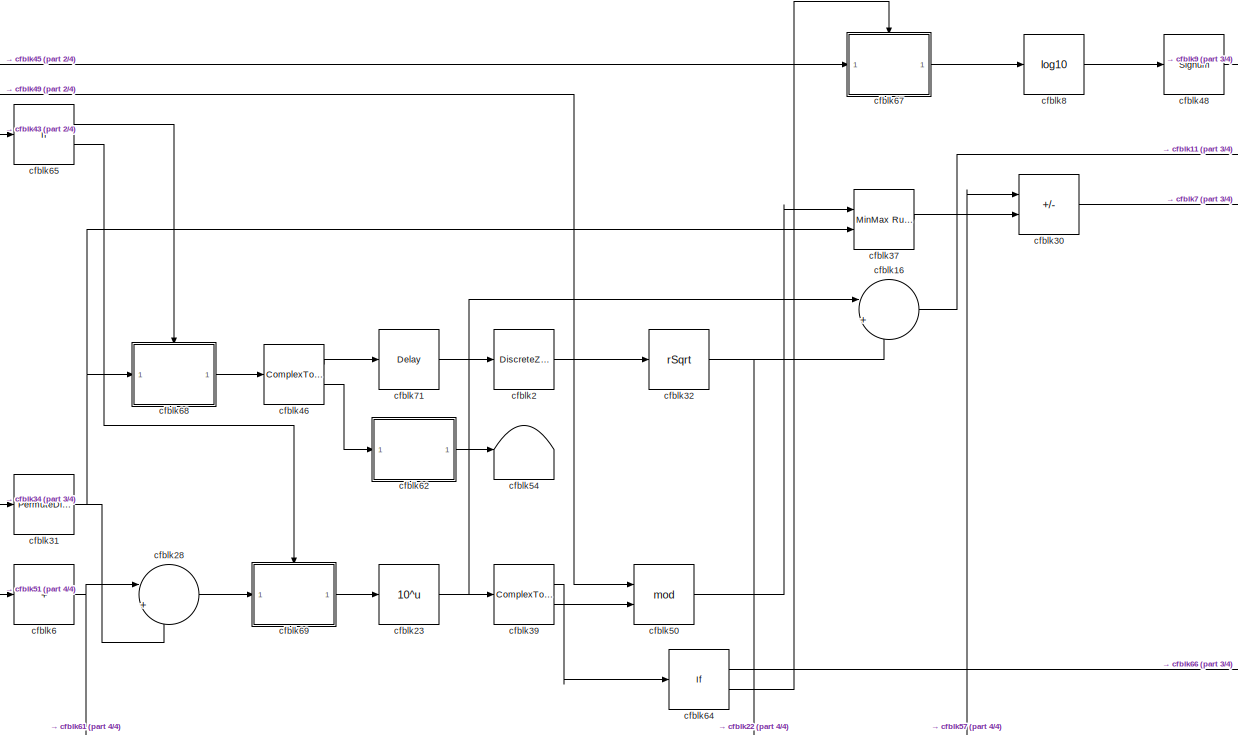
[diagram: root canvas - part 1/4, top center region]
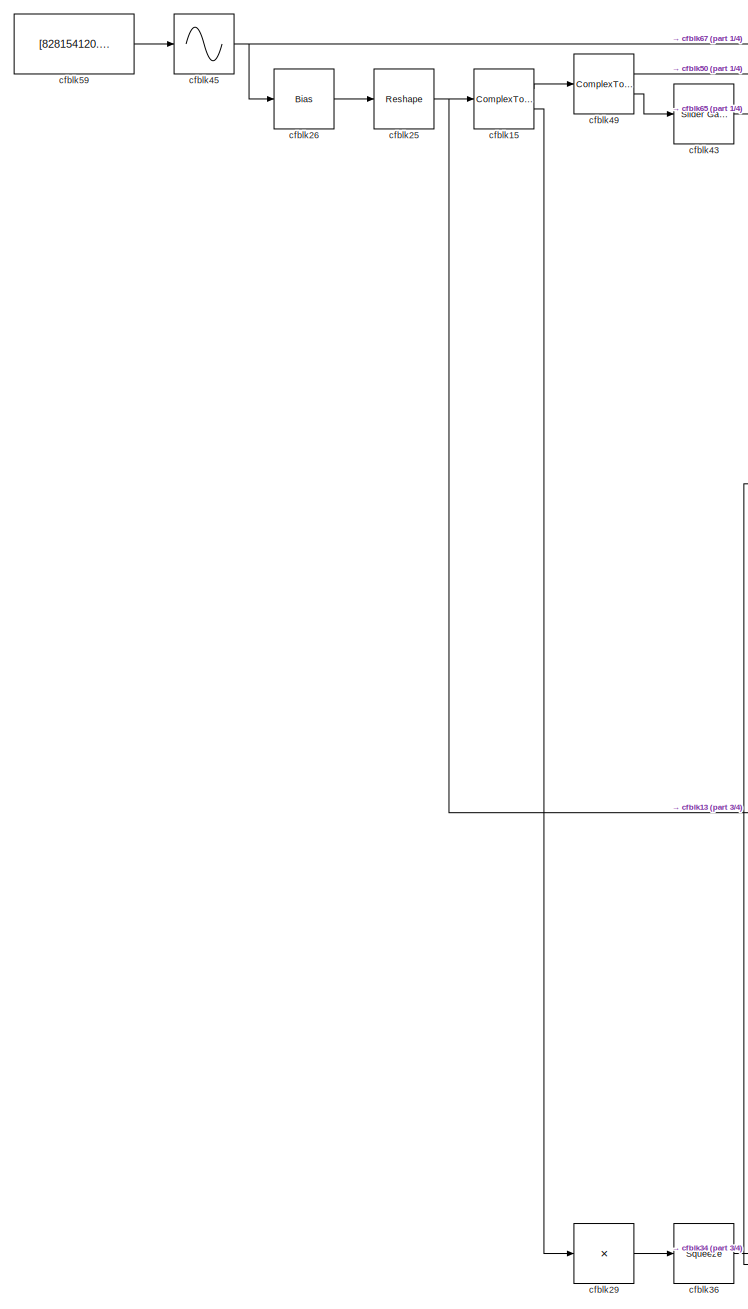
[diagram: root canvas - part 2/4, left side, full height]
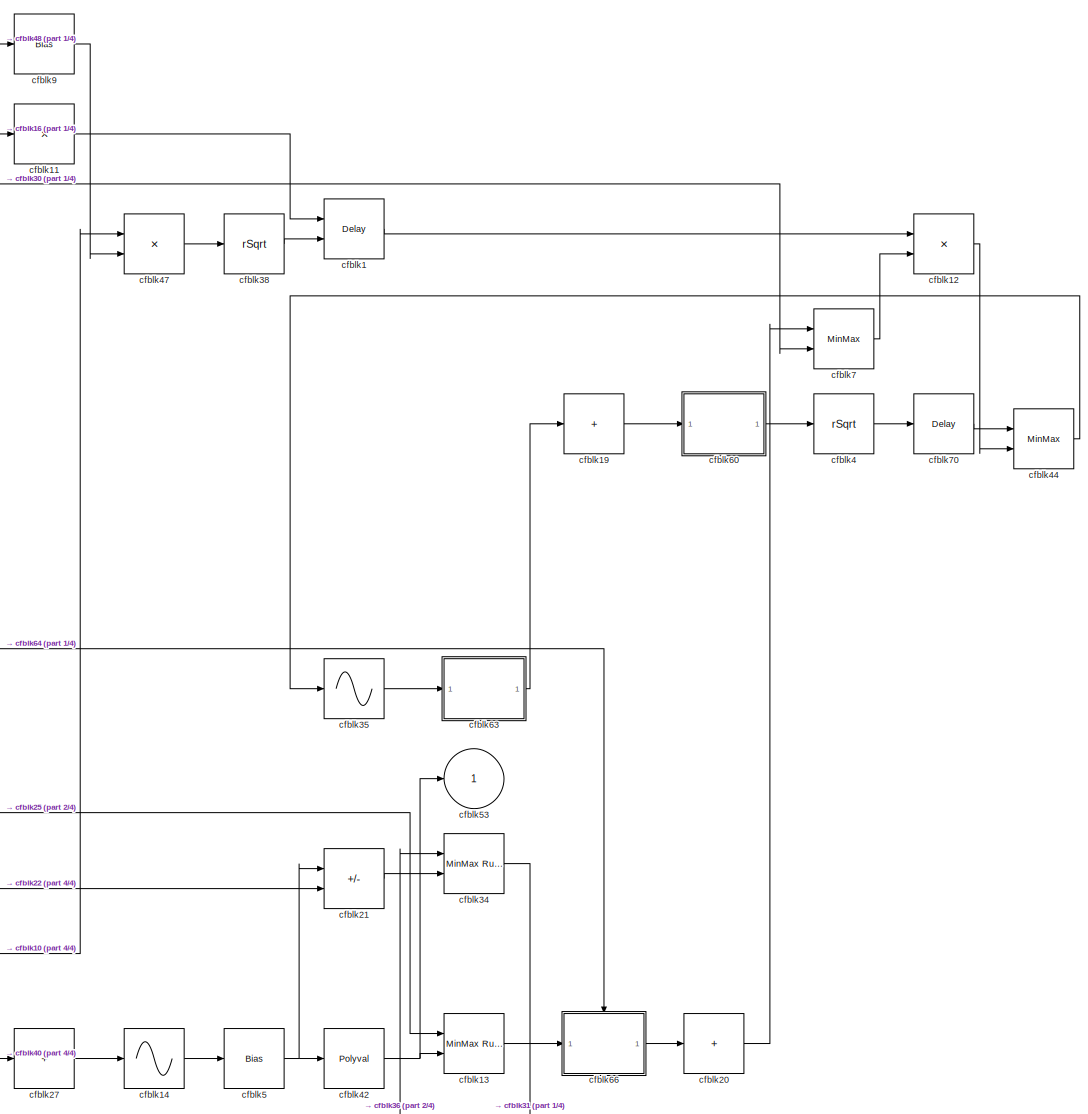
[diagram: root canvas - part 3/4, right side, full height]
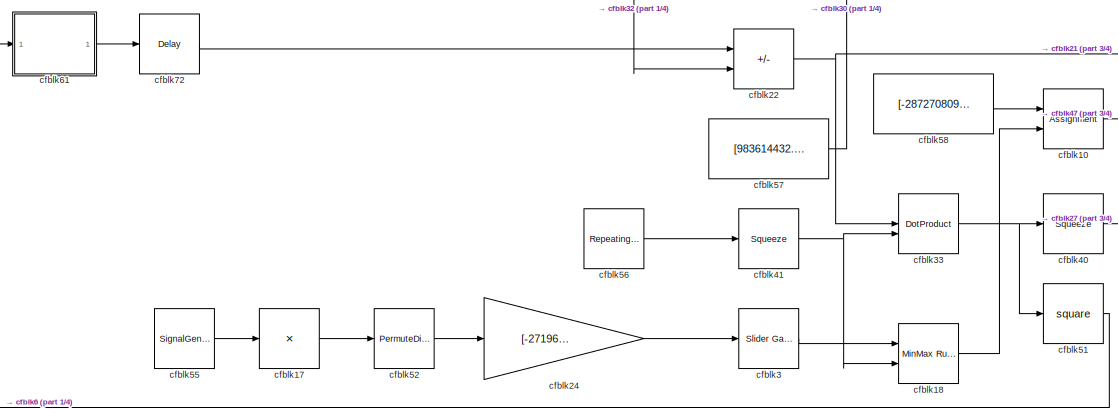
[diagram: root canvas - part 4/4, bottom center region]
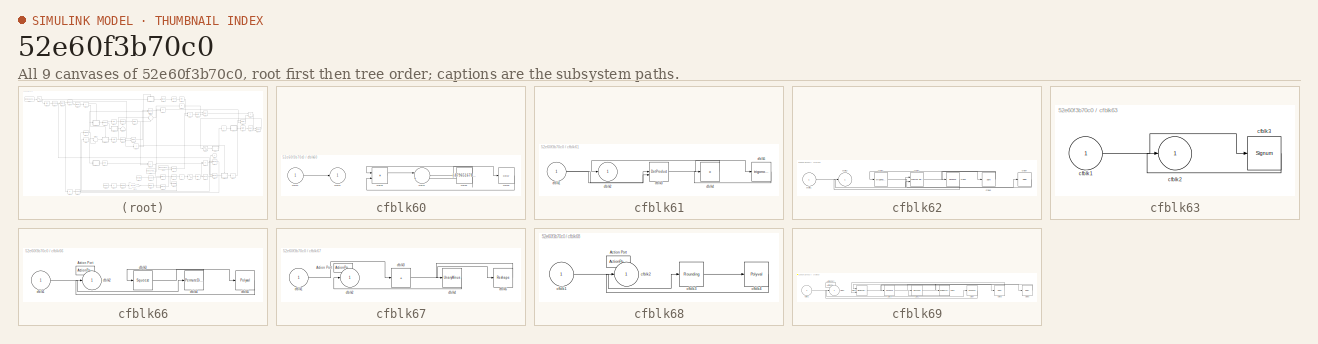
[diagram: thumbnail index - all 9 canvases of the model, root first then tree order]
MODEL slx_52e60f3b70c0
KIND model
CONFIG AbsTol = auto
CONFIG EnableMultiTasking = off
CONFIG FixedStep = auto
CONFIG MaxStep = auto
CONFIG MinStep = auto
CONFIG RelTol = 1e-3
CONFIG SampleTimeConstraint = Unconstrained
CONFIG SolverName = VariableStepAuto
CONFIG StartTime = 0.0
CONFIG StopTime = 10.0
BLOCK [Delay] cfblk1
  DelayLengthSource = Input port
  InputPortMap = u0,p1
  Ports = [2, 1]
  SampleTime = 1
BLOCK [Assignment] cfblk10
  DiagnosticForDimensions = Warning
  IndexOptions = Index vector (dialog)
  Indices = 1
  OutputSizes = 1
  Ports = [2, 1]
BLOCK [Product] cfblk11
  Inputs = *
  Ports = [1, 1]
BLOCK [Product] cfblk12
  Inputs = **
  Ports = [2, 1]
BLOCK [Reference] cfblk13  REF=simulink/Math
Operations/MinMax
Running
Resettable
  Ports = [2, 1]
  SourceBlock = simulink/Math\nOperations/MinMax\nRunning\nResettable
  SourceProductBaseCode = SL
  SourceType = MinMax Running Resettable
BLOCK [Sin] cfblk14
  Ports = [1, 1]
  SampleTime = 0
  TimeSource = Use external signal
BLOCK [ComplexToRealImag] cfblk15
  Ports = [1, 2]
BLOCK [Sum] cfblk16
  Inputs = |++
  Ports = [2, 1]
BLOCK [Product] cfblk17
  Inputs = *
  Ports = [1, 1]
BLOCK [Reference] cfblk18  REF=simulink/Math
Operations/MinMax
Running
Resettable
  Ports = [2, 1]
  SourceBlock = simulink/Math\nOperations/MinMax\nRunning\nResettable
  SourceProductBaseCode = SL
  SourceType = MinMax Running Resettable
BLOCK [Sum] cfblk19
  IconShape = rectangular
  Inputs = +
  Ports = [1, 1]
BLOCK [DiscreteZeroPole] cfblk2
  Gain = 1
  Poles = [0 0.5]
BLOCK [Sum] cfblk20
  IconShape = rectangular
  Inputs = +
  Ports = [1, 1]
BLOCK [Sum] cfblk21
  IconShape = rectangular
  Inputs = +-
  Ports = [2, 1]
BLOCK [Sum] cfblk22
  IconShape = rectangular
  Inputs = --
  Ports = [2, 1]
BLOCK [Math] cfblk23
  Operator = 10^u
  Ports = [1, 1]
  SignedPower = on
BLOCK [Gain] cfblk24
  Gain = [-271961486.566094]
BLOCK [Reshape] cfblk25
  Ports = [1, 1]
BLOCK [Bias] cfblk26
  Bias = [-405515938.608397]
  SaturateOnIntegerOverflow = off
BLOCK [Sum] cfblk27
  IconShape = rectangular
  Inputs = +
  Ports = [1, 1]
BLOCK [Sum] cfblk28
  Inputs = |++
  Ports = [2, 1]
BLOCK [Product] cfblk29
  Inputs = *
  Ports = [1, 1]
BLOCK [Reference] cfblk3  REF=simulink/Math
Operations/Slider
Gain
  Ports = [1, 1]
  SourceBlock = simulink/Math\nOperations/Slider\nGain
  SourceProductBaseCode = SL
  SourceType = Slider Gain
BLOCK [Sum] cfblk30
  IconShape = rectangular
  Inputs = --
  Ports = [2, 1]
BLOCK [PermuteDimensions] cfblk31
BLOCK [Sqrt] cfblk32
  AlgorithmType = Newton-Raphson
  Operator = rSqrt
BLOCK [DotProduct] cfblk33
  OutDataTypeStr = Inherit: Inherit via internal rule
BLOCK [Reference] cfblk34  REF=simulink/Math
Operations/MinMax
Running
Resettable
  Ports = [2, 1]
  SourceBlock = simulink/Math\nOperations/MinMax\nRunning\nResettable
  SourceProductBaseCode = SL
  SourceType = MinMax Running Resettable
BLOCK [Sin] cfblk35
  Ports = [1, 1]
  SampleTime = 0
  TimeSource = Use external signal
BLOCK [Squeeze] cfblk36
BLOCK [Reference] cfblk37  REF=simulink/Math
Operations/MinMax
Running
Resettable
  Ports = [2, 1]
  SourceBlock = simulink/Math\nOperations/MinMax\nRunning\nResettable
  SourceProductBaseCode = SL
  SourceType = MinMax Running Resettable
BLOCK [Sqrt] cfblk38
  AlgorithmType = Newton-Raphson
  Operator = rSqrt
BLOCK [ComplexToRealImag] cfblk39
  Ports = [1, 2]
BLOCK [Sqrt] cfblk4
  AlgorithmType = Newton-Raphson
  Operator = rSqrt
BLOCK [Squeeze] cfblk40
BLOCK [Squeeze] cfblk41
BLOCK [Polyval] cfblk42
  Coefs = [ +2.081618890e-019, -1.441693666e-014, +4.719686976e-010, -8.536869453e-006, +1.621573104e-001, -8.087801117e+001 ]
BLOCK [Reference] cfblk43  REF=simulink/Math
Operations/Slider
Gain
  Ports = [1, 1]
  SourceBlock = simulink/Math\nOperations/Slider\nGain
  SourceProductBaseCode = SL
  SourceType = Slider Gain
BLOCK [MinMax] cfblk44
  Function = max
  Inputs = 2
  Ports = [2, 1]
BLOCK [Sin] cfblk45
  Ports = [1, 1]
  SampleTime = 0
  TimeSource = Use external signal
BLOCK [ComplexToMagnitudeAngle] cfblk46
  Ports = [1, 2]
BLOCK [Product] cfblk47
  Ports = [2, 1]
BLOCK [Signum] cfblk48
BLOCK [ComplexToMagnitudeAngle] cfblk49
  Ports = [1, 2]
BLOCK [Bias] cfblk5
  Bias = [730934059.458705]
  SaturateOnIntegerOverflow = off
BLOCK [Math] cfblk50
  Operator = mod
  Ports = [2, 1]
  SignedPower = on
BLOCK [Math] cfblk51
  Operator = square
  Ports = [1, 1]
  SignedPower = on
BLOCK [PermuteDimensions] cfblk52
BLOCK [Outport] cfblk53
  VectorParamsAs1DForOutWhenUnconnected = off
BLOCK [Terminator] cfblk54
BLOCK [SignalGenerator] cfblk55
  Amplitude = [-35271137.426169]
  Ports = [0, 1]
BLOCK [Reference] cfblk56  REF=simulink/Sources/Repeating
Sequence
  Ports = [0, 1]
  SourceBlock = simulink/Sources/Repeating\nSequence
  SourceProductBaseCode = SL
  SourceType = Repeating table
BLOCK [Constant] cfblk57
  SampleTime = 1
  Value = [983614432.765261]
BLOCK [Constant] cfblk58
  SampleTime = 1
  Value = [-287270809.284831]
BLOCK [Constant] cfblk59
  SampleTime = 1
  Value = [828154120.042818]
BLOCK [Sum] cfblk6
  IconShape = rectangular
  Inputs = +
  Ports = [1, 1]
BLOCK [SubSystem] cfblk60
  Ports = [1, 1]
  RequestExecContextInheritance = off
BLOCK [Inport] cfblk60/cfblk1
BLOCK [Outport] cfblk60/cfblk2
  VectorParamsAs1DForOutWhenUnconnected = off
BLOCK [Product] cfblk60/cfblk3
  Ports = [2, 1]
BLOCK [Sum] cfblk60/cfblk4
  Inputs = |++
  Ports = [2, 1]
BLOCK [Constant] cfblk60/cfblk5
  SampleTime = 1
  Value = [-879651678.611166]
BLOCK [Delay] cfblk60/cfblk6
  InputPortMap = u0
  Ports = [1, 1]
  SampleTime = 1
BLOCK [SubSystem] cfblk61
  Ports = [1, 1]
  RequestExecContextInheritance = off
BLOCK [Inport] cfblk61/cfblk1
BLOCK [Outport] cfblk61/cfblk2
  VectorParamsAs1DForOutWhenUnconnected = off
BLOCK [DotProduct] cfblk61/cfblk3
  OutDataTypeStr = Inherit: Inherit via internal rule
BLOCK [Product] cfblk61/cfblk4
  Inputs = *
  Ports = [1, 1]
BLOCK [Trigonometry] cfblk61/cfblk5
  Ports = [1, 1]
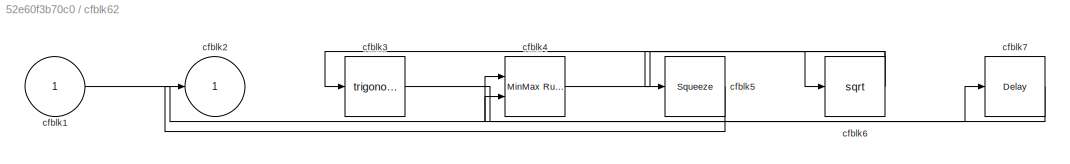
BLOCK [SubSystem] cfblk62
  Ports = [1, 1]
  RequestExecContextInheritance = off
BLOCK [Inport] cfblk62/cfblk1
BLOCK [Outport] cfblk62/cfblk2
  VectorParamsAs1DForOutWhenUnconnected = off
BLOCK [Trigonometry] cfblk62/cfblk3
  Ports = [1, 1]
BLOCK [Reference] cfblk62/cfblk4  REF=simulink/Math
Operations/MinMax
Running
Resettable
  Ports = [2, 1]
  SourceBlock = simulink/Math\nOperations/MinMax\nRunning\nResettable
  SourceProductBaseCode = SL
  SourceType = MinMax Running Resettable
BLOCK [Squeeze] cfblk62/cfblk5
BLOCK [Sqrt] cfblk62/cfblk6
BLOCK [Delay] cfblk62/cfblk7
  InputPortMap = u0
  Ports = [1, 1]
  SampleTime = 1
BLOCK [SubSystem] cfblk63
  Ports = [1, 1]
  RequestExecContextInheritance = off
BLOCK [Inport] cfblk63/cfblk1
BLOCK [Outport] cfblk63/cfblk2
  VectorParamsAs1DForOutWhenUnconnected = off
BLOCK [Signum] cfblk63/cfblk3
BLOCK [If] cfblk64
  IfExpression = u1 >= 0
  Ports = [1, 2]
  SampleTime = 1
BLOCK [If] cfblk65
  IfExpression = u1 >= 0
  Ports = [1, 2]
  SampleTime = 1
BLOCK [SubSystem] cfblk66
  Ports = [1, 1, 0, 0, 0, 0, 0, 1]
  RequestExecContextInheritance = off
  TreatAsAtomicUnit = on
BLOCK [ActionPort] cfblk66/Action Port
  ActionPortLabel = if(u1 >= 0)
BLOCK [Inport] cfblk66/cfblk1
BLOCK [Outport] cfblk66/cfblk2
  VectorParamsAs1DForOutWhenUnconnected = off
BLOCK [Squeeze] cfblk66/cfblk3
BLOCK [PermuteDimensions] cfblk66/cfblk4
BLOCK [Polyval] cfblk66/cfblk5
  Coefs = [ +2.081618890e-019, -1.441693666e-014, +4.719686976e-010, -8.536869453e-006, +1.621573104e-001, -8.087801117e+001 ]
BLOCK [SubSystem] cfblk67
  Ports = [1, 1, 0, 0, 0, 0, 0, 1]
  RequestExecContextInheritance = off
  TreatAsAtomicUnit = on
BLOCK [ActionPort] cfblk67/Action Port
  ActionPortLabel = else
BLOCK [Inport] cfblk67/cfblk1
BLOCK [Outport] cfblk67/cfblk2
  VectorParamsAs1DForOutWhenUnconnected = off
BLOCK [Sum] cfblk67/cfblk3
  IconShape = rectangular
  Inputs = +
  Ports = [1, 1]
BLOCK [UnaryMinus] cfblk67/cfblk4
BLOCK [Reshape] cfblk67/cfblk5
  Ports = [1, 1]
BLOCK [SubSystem] cfblk68
  Ports = [1, 1, 0, 0, 0, 0, 0, 1]
  RequestExecContextInheritance = off
  TreatAsAtomicUnit = on
BLOCK [ActionPort] cfblk68/Action Port
  ActionPortLabel = if(u1 >= 0)
BLOCK [Inport] cfblk68/cfblk1
BLOCK [Outport] cfblk68/cfblk2
  VectorParamsAs1DForOutWhenUnconnected = off
BLOCK [Rounding] cfblk68/cfblk3
BLOCK [Polyval] cfblk68/cfblk4
  Coefs = [ +2.081618890e-019, -1.441693666e-014, +4.719686976e-010, -8.536869453e-006, +1.621573104e-001, -8.087801117e+001 ]
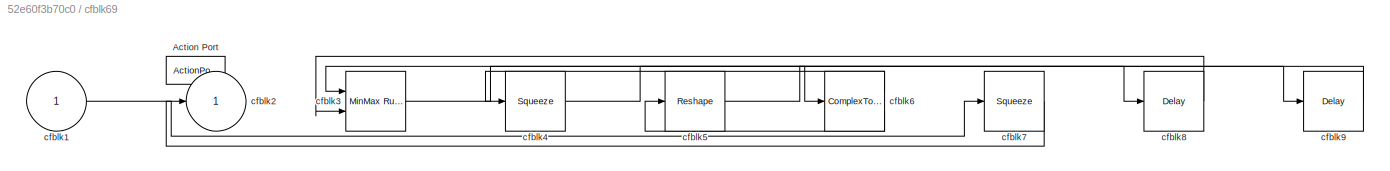
BLOCK [SubSystem] cfblk69
  Ports = [1, 1, 0, 0, 0, 0, 0, 1]
  RequestExecContextInheritance = off
  TreatAsAtomicUnit = on
BLOCK [ActionPort] cfblk69/Action Port
  ActionPortLabel = else
BLOCK [Inport] cfblk69/cfblk1
BLOCK [Outport] cfblk69/cfblk2
  VectorParamsAs1DForOutWhenUnconnected = off
BLOCK [Reference] cfblk69/cfblk3  REF=simulink/Math
Operations/MinMax
Running
Resettable
  Ports = [2, 1]
  SourceBlock = simulink/Math\nOperations/MinMax\nRunning\nResettable
  SourceProductBaseCode = SL
  SourceType = MinMax Running Resettable
BLOCK [Squeeze] cfblk69/cfblk4
BLOCK [Reshape] cfblk69/cfblk5
  Ports = [1, 1]
BLOCK [ComplexToRealImag] cfblk69/cfblk6
  Ports = [1, 2]
BLOCK [Squeeze] cfblk69/cfblk7
BLOCK [Delay] cfblk69/cfblk8
  InputPortMap = u0
  Ports = [1, 1]
BLOCK [Delay] cfblk69/cfblk9
  InputPortMap = u0
  Ports = [1, 1]
BLOCK [MinMax] cfblk7
  Inputs = 2
  Ports = [2, 1]
BLOCK [Delay] cfblk70
  InputPortMap = u0
  Ports = [1, 1]
  SampleTime = 1
BLOCK [Delay] cfblk71
  InputPortMap = u0
  Ports = [1, 1]
  SampleTime = 1
BLOCK [Delay] cfblk72
  InputPortMap = u0
  Ports = [1, 1]
  SampleTime = 1
BLOCK [Math] cfblk8
  Operator = log10
  Ports = [1, 1]
  SignedPower = on
BLOCK [Bias] cfblk9
  Bias = [493413834.246385]
  SaturateOnIntegerOverflow = off
LINE cfblk10:1 -> cfblk47:1
LINE cfblk11:1 -> cfblk1:1
LINE cfblk12:1 -> cfblk44:2
LINE cfblk13:1 -> cfblk66:1
LINE cfblk14:1 -> cfblk5:1
LINE cfblk15:1 -> cfblk49:1
LINE cfblk15:2 -> cfblk29:1
LINE cfblk16:1 -> cfblk11:1
LINE cfblk17:1 -> cfblk52:1
LINE cfblk18:1 -> cfblk10:2
LINE cfblk19:1 -> cfblk60:1
LINE cfblk1:1 -> cfblk12:1
LINE cfblk20:1 -> cfblk7:1
LINE cfblk21:1 -> cfblk34:2
NET cfblk22:1 -> cfblk21:2, cfblk33:1
NET cfblk23:1 -> cfblk16:1, cfblk39:1
LINE cfblk24:1 -> cfblk3:1
NET cfblk25:1 -> cfblk13:1, cfblk15:1
LINE cfblk26:1 -> cfblk25:1
LINE cfblk27:1 -> cfblk14:1
LINE cfblk28:1 -> cfblk69:1
LINE cfblk29:1 -> cfblk36:1
LINE cfblk2:1 -> cfblk32:1
LINE cfblk30:1 -> cfblk7:2
NET cfblk31:1 -> cfblk28:2, cfblk37:2, cfblk68:1
NET cfblk32:1 -> cfblk16:2, cfblk22:2
NET cfblk33:1 -> cfblk40:1, cfblk51:1
LINE cfblk34:1 -> cfblk31:1
LINE cfblk35:1 -> cfblk63:1
LINE cfblk36:1 -> cfblk34:1
LINE cfblk37:1 -> cfblk30:2
LINE cfblk38:1 -> cfblk1:2
LINE cfblk39:1 -> cfblk64:1
LINE cfblk39:2 -> cfblk50:2
LINE cfblk3:1 -> cfblk18:1
LINE cfblk40:1 -> cfblk27:1
NET cfblk41:1 -> cfblk18:2, cfblk33:2
NET cfblk42:1 -> cfblk13:2, cfblk53:1
LINE cfblk43:1 -> cfblk65:1
LINE cfblk44:1 -> cfblk35:1
NET cfblk45:1 -> cfblk26:1, cfblk67:1
LINE cfblk46:1 -> cfblk71:1
LINE cfblk46:2 -> cfblk62:1
LINE cfblk47:1 -> cfblk38:1
LINE cfblk48:1 -> cfblk9:1
LINE cfblk49:1 -> cfblk50:1
LINE cfblk49:2 -> cfblk43:1
LINE cfblk4:1 -> cfblk70:1
LINE cfblk50:1 -> cfblk37:1
LINE cfblk51:1 -> cfblk6:1
LINE cfblk52:1 -> cfblk24:1
LINE cfblk55:1 -> cfblk17:1
LINE cfblk56:1 -> cfblk41:1
LINE cfblk57:1 -> cfblk30:1
LINE cfblk58:1 -> cfblk10:1
LINE cfblk59:1 -> cfblk45:1
NET cfblk5:1 -> cfblk21:1, cfblk42:1
LINE cfblk60/cfblk1:1 -> cfblk60/cfblk2:1
LINE cfblk60/cfblk3:1 -> cfblk60/cfblk4:1
LINE cfblk60/cfblk4:1 -> cfblk60/cfblk6:1
NET cfblk60/cfblk5:1 -> cfblk60/cfblk3:1, cfblk60/cfblk4:2
LINE cfblk60/cfblk6:1 -> cfblk60/cfblk3:2
LINE cfblk60:1 -> cfblk4:1
NET cfblk61/cfblk1:1 -> cfblk61/cfblk3:1, cfblk61/cfblk3:2
LINE cfblk61/cfblk3:1 -> cfblk61/cfblk5:1
LINE cfblk61/cfblk4:1 -> cfblk61/cfblk2:1
LINE cfblk61/cfblk5:1 -> cfblk61/cfblk4:1
LINE cfblk61:1 -> cfblk72:1
LINE cfblk62/cfblk1:1 -> cfblk62/cfblk4:1
LINE cfblk62/cfblk3:1 -> cfblk62/cfblk7:1
LINE cfblk62/cfblk4:1 -> cfblk62/cfblk6:1
LINE cfblk62/cfblk5:1 -> cfblk62/cfblk2:1
NET cfblk62/cfblk6:1 -> cfblk62/cfblk3:1, cfblk62/cfblk5:1
LINE cfblk62/cfblk7:1 -> cfblk62/cfblk4:2
LINE cfblk62:1 -> cfblk54:1
LINE cfblk63/cfblk1:1 -> cfblk63/cfblk3:1
LINE cfblk63/cfblk3:1 -> cfblk63/cfblk2:1
LINE cfblk63:1 -> cfblk19:1
LINE cfblk64:1 -> cfblk66:ifaction
LINE cfblk64:2 -> cfblk67:ifaction
LINE cfblk65:1 -> cfblk68:ifaction
LINE cfblk65:2 -> cfblk69:ifaction
LINE cfblk66/cfblk1:1 -> cfblk66/cfblk4:1
LINE cfblk66/cfblk3:1 -> cfblk66/cfblk5:1
LINE cfblk66/cfblk4:1 -> cfblk66/cfblk3:1
LINE cfblk66/cfblk5:1 -> cfblk66/cfblk2:1
LINE cfblk66:1 -> cfblk20:1
LINE cfblk67/cfblk1:1 -> cfblk67/cfblk3:1
LINE cfblk67/cfblk3:1 -> cfblk67/cfblk5:1
LINE cfblk67/cfblk4:1 -> cfblk67/cfblk2:1
LINE cfblk67/cfblk5:1 -> cfblk67/cfblk4:1
LINE cfblk67:1 -> cfblk8:1
LINE cfblk68/cfblk1:1 -> cfblk68/cfblk3:1
LINE cfblk68/cfblk3:1 -> cfblk68/cfblk4:1
LINE cfblk68/cfblk4:1 -> cfblk68/cfblk2:1
LINE cfblk68:1 -> cfblk46:1
LINE cfblk69/cfblk1:1 -> cfblk69/cfblk7:1
LINE cfblk69/cfblk3:1 -> cfblk69/cfblk6:1
LINE cfblk69/cfblk4:1 -> cfblk69/cfblk8:1
LINE cfblk69/cfblk5:1 -> cfblk69/cfblk9:1
LINE cfblk69/cfblk6:1 -> cfblk69/cfblk4:1
LINE cfblk69/cfblk6:2 -> cfblk69/cfblk5:1
LINE cfblk69/cfblk7:1 -> cfblk69/cfblk2:1
LINE cfblk69/cfblk8:1 -> cfblk69/cfblk3:2
LINE cfblk69/cfblk9:1 -> cfblk69/cfblk3:1
LINE cfblk69:1 -> cfblk23:1
NET cfblk6:1 -> cfblk28:1, cfblk61:1
LINE cfblk70:1 -> cfblk44:1
LINE cfblk71:1 -> cfblk2:1
LINE cfblk72:1 -> cfblk22:1
LINE cfblk7:1 -> cfblk12:2
LINE cfblk8:1 -> cfblk48:1
LINE cfblk9:1 -> cfblk47:2
note: NET lines group one-source signal fan-out (src -> all destinations, sorted); 1:1 wires keep LINE
